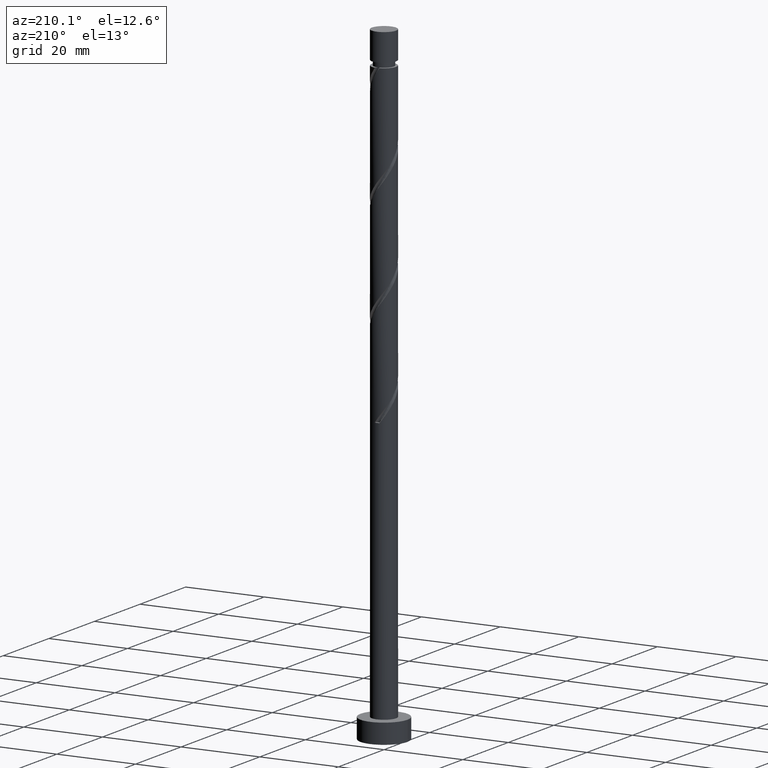
[diagram: clean part render]
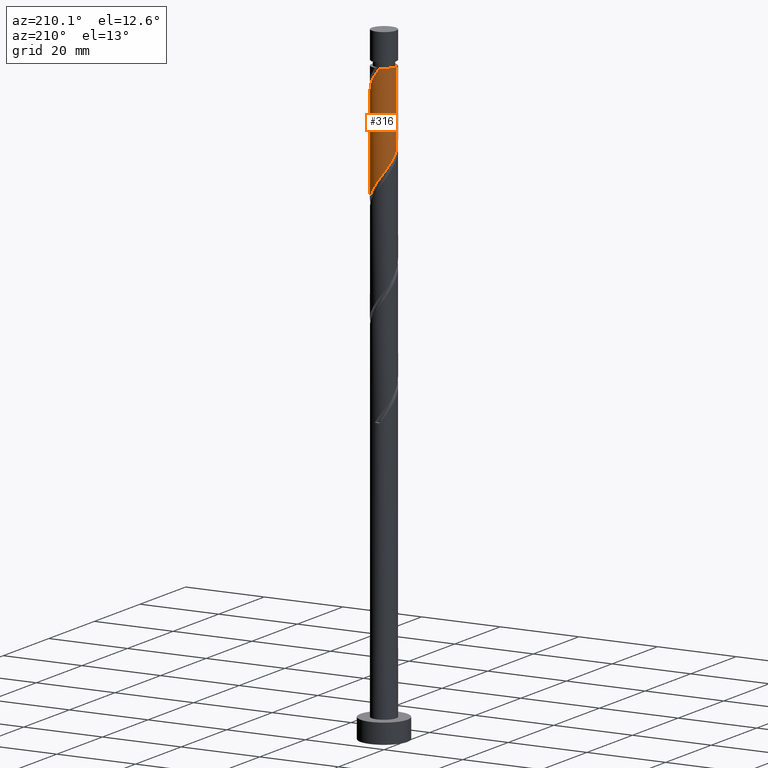
[diagram: same view with one face highlighted and labeled with its STEP entity id]
A machine part, auxiliary view. The second image highlights one B-rep face of the part: STEP entity #316.
In plain terms, the highlighted cylindrical surface (edge-blend (fillet) strip) has radius 3.1 mm, axis along (-0, -0, -1).
Its self-contained STEP definition (entity closure, byte-faithful):
#77 = CARTESIAN_POINT ( 'NONE',  ( -3.099999999999999201, 0.08920413222385366325, 132.5606687935006107 ) ) ;
#94 =( BOUNDED_CURVE ( )  B_SPLINE_CURVE ( 2, ( #959, #198, #1099, #1618, #1628, #971, #1266, #150, #652, #121, #528, #1429, #1535, #240, #1165 ),
 .UNSPECIFIED., .F., .T. ) 
 B_SPLINE_CURVE_WITH_KNOTS ( ( 3, 2, 2, 2, 2, 2, 2, 3 ),
 ( 0.6795252162417517727, 0.6818181818181818787, 0.6931818181818180102, 0.7045454545454543638, 0.7159090909090904953, 0.7272727272727268488, 0.7386363636363630913, 0.7499999999999993339 ),
 .UNSPECIFIED. ) 
 CURVE ( )  GEOMETRIC_REPRESENTATION_ITEM ( )  RATIONAL_B_SPLINE_CURVE ( ( 0.9061101570135636774, 0.9072237824201456746, 0.9090909090909228274, 0.8998376744372251768, 0.9090909090909228274, 0.8998376744372251768, 0.9090909090909228274, 0.8998376744372251768, 0.9090909090909228274, 0.8998376744372251768, 0.9090909090909228274, 0.8998376744372251768, 0.9090909090909228274, 0.8998376744372257319, 0.9090909090909222723 ) ) 
 REPRESENTATION_ITEM ( '' )  );
#106 = CARTESIAN_POINT ( 'NONE',  ( 0.000000000000000000, 0.000000000000000000, 151.8333123189179901 ) ) ;
#121 = CARTESIAN_POINT ( 'NONE',  ( 1.538914817748200381, 2.727709846153857143, 148.8030092886149589 ) ) ;
#129 = VERTEX_POINT ( 'NONE', #430 ) ;
#141 = DIRECTION ( 'NONE',  ( -0.000000000000000000, -0.000000000000000000, -1.000000000000000000 ) ) ;
#144 = ORIENTED_EDGE ( 'NONE', *, *, #348, .F. ) ;
#150 = CARTESIAN_POINT ( 'NONE',  ( 2.245062623899103382, 2.183656025078341223, 147.5908880764937408 ) ) ;
#153 = VERTEX_POINT ( 'NONE', #294 ) ;
#185 =( BOUNDED_CURVE ( )  B_SPLINE_CURVE ( 2, ( #989, #77, #335, #439, #197, #853, #1120, #952, #1617, #1508, #1368, #218, #1108, #209, #731, #832, #473, #1474, #1348, #1233, #1627, #1500, #344, #1636, #1390 ),
 .UNSPECIFIED., .F., .T. ) 
 B_SPLINE_CURVE_WITH_KNOTS ( ( 3, 2, 2, 2, 2, 2, 2, 2, 2, 2, 2, 2, 3 ),
 ( 0.4295252162417514397, 0.4318181818181818232, 0.4431818181818181768, 0.4545454545454545303, 0.4659090909090908839, 0.4772727272727272929, 0.4886363636363636465, 0.5000000000000000000, 0.5113636363636363535, 0.5227272727272727071, 0.5340909090909090606, 0.5454545454545454142, 0.5545252162417514397 ),
 .UNSPECIFIED. ) 
 CURVE ( )  GEOMETRIC_REPRESENTATION_ITEM ( )  RATIONAL_B_SPLINE_CURVE ( ( 0.9061101570135575711, 0.9072237824201397904, 0.9090909090909171653, 0.8998376744372194036, 0.9090909090909171653, 0.8998376744372194036, 0.9090909090909171653, 0.8998376744372194036, 0.9090909090909171653, 0.8998376744372194036, 0.9090909090909171653, 0.8998376744372194036, 0.9090909090909171653, 0.8998376744372194036, 0.9090909090909171653, 0.8998376744372194036, 0.9090909090909171653, 0.8998376744372194036, 0.9090909090909171653, 0.8998376744372194036, 0.9090909090909171653, 0.8998376744372194036, 0.9090909090909171653, 0.9017048011079968894, 0.9061101570135576821 ) ) 
 REPRESENTATION_ITEM ( '' )  );
#197 = CARTESIAN_POINT ( 'NONE',  ( -2.919284625192889671, 1.042965616457419253, 131.2272517128573668 ) ) ;
#198 = CARTESIAN_POINT ( 'NONE',  ( 3.100000000000002753, 0.08920413222386433527, 144.4392891776687406 ) ) ;
#209 = CARTESIAN_POINT ( 'NONE',  ( 0.1800937538493760093, 3.126695709677243862, 125.7727062583119420 ) ) ;
#210 = DIRECTION ( 'NONE',  ( -1.000000000000000000, 0.000000000000000000, 0.000000000000000000 ) ) ;
#218 = CARTESIAN_POINT ( 'NONE',  ( -0.7080932853421633144, 3.050780837809067059, 126.9848274704331601 ) ) ;
#231 = FACE_OUTER_BOUND ( 'NONE', #1418, .T. ) ;
#240 = CARTESIAN_POINT ( 'NONE',  ( -0.1800937538493489753, 3.126695709677246526, 151.2272517128573952 ) ) ;
#269 = VECTOR ( 'NONE', #141, 1000.000000000000000 ) ;
#294 = CARTESIAN_POINT ( 'NONE',  ( -3.099999999999993872, 0.000000000000000000, 151.8333123189179901 ) ) ;
#298 = ORIENTED_EDGE ( 'NONE', *, *, #726, .F. ) ;
#316 = ADVANCED_FACE ( 'NONE', ( #231 ), #454, .T. ) ;
#335 = CARTESIAN_POINT ( 'NONE',  ( -3.094870455675655663, 0.1782606591089396786, 132.4393729249785849 ) ) ;
#342 = AXIS2_PLACEMENT_3D ( 'NONE', #106, #481, #1623 ) ;
#344 = CARTESIAN_POINT ( 'NONE',  ( 3.019728287742890593, 0.7008859166835856858, 120.3181608037664745 ) ) ;
#348 = EDGE_CURVE ( 'NONE', #129, #868, #94, .T. ) ;
#378 = DIRECTION ( 'NONE',  ( -0.000000000000000000, -0.000000000000000000, -1.000000000000000000 ) ) ;
#399 = CARTESIAN_POINT ( 'NONE',  ( 3.100000000000000089, 3.796405077356794918E-16, 160.0000000000000000 ) ) ;
#411 = ORIENTED_EDGE ( 'NONE', *, *, #572, .T. ) ;
#417 = CARTESIAN_POINT ( 'NONE',  ( 3.099999999999998757, -3.769118817281108271E-15, 119.3494334648855073 ) ) ;
#430 = CARTESIAN_POINT ( 'NONE',  ( 3.100000000000003642, 2.108911719192988068E-15, 144.3171911729504586 ) ) ;
#439 = CARTESIAN_POINT ( 'NONE',  ( -3.069240442222553433, 0.6232358533614308360, 131.8333123189180185 ) ) ;
#454 = CYLINDRICAL_SURFACE ( 'NONE', #1042, 3.100000000000000089 ) ;
#473 = CARTESIAN_POINT ( 'NONE',  ( 1.447807249622133030, 2.741141033938529592, 123.9545244401301147 ) ) ;
#481 = DIRECTION ( 'NONE',  ( -0.000000000000000000, -0.000000000000000000, -1.000000000000000000 ) ) ;
#510 = CARTESIAN_POINT ( 'NONE',  ( -3.100000000000000089, 0.000000000000000000, 160.0000000000000000 ) ) ;
#528 = CARTESIAN_POINT ( 'NONE',  ( 1.123504051545182847, 2.889245341981463433, 149.4090698946755538 ) ) ;
#572 = EDGE_CURVE ( 'NONE', #129, #1032, #902, .T. ) ;
#593 = CARTESIAN_POINT ( 'NONE',  ( 0.000000000000000000, 0.000000000000000000, 160.0000000000000000 ) ) ;
#633 = CARTESIAN_POINT ( 'NONE',  ( -3.099999999999998757, -1.211502476983213288E-15, 132.6827667982188643 ) ) ;
#652 = CARTESIAN_POINT ( 'NONE',  ( 1.891988720823650993, 2.455682935616100071, 148.1969486825543925 ) ) ;
#726 = EDGE_CURVE ( 'NONE', #946, #1032, #185, .T. ) ;
#731 = CARTESIAN_POINT ( 'NONE',  ( 0.6168922110061056951, 3.037999999999999368, 125.1666456522513045 ) ) ;
#823 = CIRCLE ( 'NONE', #342, 3.099999999999993872 ) ;
#832 = CARTESIAN_POINT ( 'NONE',  ( 1.053690668162834188, 2.949304290322753985, 124.5605850461907522 ) ) ;
#853 = CARTESIAN_POINT ( 'NONE',  ( -2.769328808163226796, 1.462695379553408781, 130.6211911067968003 ) ) ;
#868 = VERTEX_POINT ( 'NONE', #980 ) ;
#902 = LINE ( 'NONE', #399, #269 ) ;
#946 = VERTEX_POINT ( 'NONE', #633 ) ;
#952 = CARTESIAN_POINT ( 'NONE',  ( -2.245062623899099830, 2.183656025078340779, 129.4090698946755822 ) ) ;
#959 = CARTESIAN_POINT ( 'NONE',  ( 3.100000000000003642, 2.108911719192987674E-15, 144.3171911729504586 ) ) ;
#971 = CARTESIAN_POINT ( 'NONE',  ( 2.769328808163231237, 1.462695379553409447, 146.3787668643725510 ) ) ;
#980 = CARTESIAN_POINT ( 'NONE',  ( -0.6168922110061703101, 3.038000000000658396, 151.8333123189179332 ) ) ;
#989 = CARTESIAN_POINT ( 'NONE',  ( -3.099999999999998757, -1.211502476983213288E-15, 132.6827667982188643 ) ) ;
#1032 = VERTEX_POINT ( 'NONE', #417 ) ;
#1042 = AXIS2_PLACEMENT_3D ( 'NONE', #593, #1258, #210 ) ;
#1099 = CARTESIAN_POINT ( 'NONE',  ( 3.094870455675660548, 0.1782606591089387071, 144.5605850461907380 ) ) ;
#1108 = CARTESIAN_POINT ( 'NONE',  ( -0.2639997657463936109, 3.088738273743154572, 126.3787668643725510 ) ) ;
#1120 = CARTESIAN_POINT ( 'NONE',  ( -2.507195716031161759, 1.823175702315874558, 130.0151305007361771 ) ) ;
#1123 = EDGE_CURVE ( 'NONE', #153, #868, #823, .T. ) ;
#1165 = CARTESIAN_POINT ( 'NONE',  ( -0.6168922110061703101, 3.038000000000658396, 151.8333123189179332 ) ) ;
#1227 = ORIENTED_EDGE ( 'NONE', *, *, #1398, .F. ) ;
#1233 = CARTESIAN_POINT ( 'NONE',  ( 2.480935279548627026, 1.911444469447287853, 122.1363426219482875 ) ) ;
#1258 = DIRECTION ( 'NONE',  ( -0.000000000000000000, -0.000000000000000000, -1.000000000000000000 ) ) ;
#1266 = CARTESIAN_POINT ( 'NONE',  ( 2.507195716031167976, 1.823175702315876334, 146.9848274704331459 ) ) ;
#1291 = ORIENTED_EDGE ( 'NONE', *, *, #1123, .T. ) ;
#1348 = CARTESIAN_POINT ( 'NONE',  ( 2.161429555315029116, 2.222211123500796859, 122.7424032280089108 ) ) ;
#1368 = CARTESIAN_POINT ( 'NONE',  ( -1.123504051545180626, 2.889245341981458992, 127.5908880764937408 ) ) ;
#1390 = CARTESIAN_POINT ( 'NONE',  ( 3.099999999999998312, -3.769118817281108271E-15, 119.3494334648854931 ) ) ;
#1398 = EDGE_CURVE ( 'NONE', #153, #946, #1436, .T. ) ;
#1418 = EDGE_LOOP ( 'NONE', ( #144, #411, #298, #1227, #1291 ) ) ;
#1429 = CARTESIAN_POINT ( 'NONE',  ( 0.7080932853421649797, 3.050780837809070611, 150.0151305007361202 ) ) ;
#1436 = LINE ( 'NONE', #510, #1472 ) ;
#1472 = VECTOR ( 'NONE', #378, 1000.000000000000000 ) ;
#1474 = CARTESIAN_POINT ( 'NONE',  ( 1.841923831081431873, 2.532977777554304755, 123.3484638340695199 ) ) ;
#1500 = CARTESIAN_POINT ( 'NONE',  ( 2.918956106357021074, 1.135057298223620448, 120.9242214098270694 ) ) ;
#1508 = CARTESIAN_POINT ( 'NONE',  ( -1.538914817748199271, 2.727709846153853590, 128.1969486825543925 ) ) ;
#1535 = CARTESIAN_POINT ( 'NONE',  ( 0.2639997657463947767, 3.088738273743159457, 150.6211911067968288 ) ) ;
#1617 = CARTESIAN_POINT ( 'NONE',  ( -1.891988720823648551, 2.455682935616096518, 128.8030092886149589 ) ) ;
#1618 = CARTESIAN_POINT ( 'NONE',  ( 3.069240442222557430, 0.6232358533614306140, 145.1666456522513613 ) ) ;
#1623 = DIRECTION ( 'NONE',  ( -1.000000000000000000, 0.000000000000000000, 0.000000000000000000 ) ) ;
#1627 = CARTESIAN_POINT ( 'NONE',  ( 2.699945692952822718, 1.523250883835454816, 121.5302820158877068 ) ) ;
#1628 = CARTESIAN_POINT ( 'NONE',  ( 2.919284625192895000, 1.042965616457419697, 145.7727062583118993 ) ) ;
#1636 = CARTESIAN_POINT ( 'NONE',  ( 3.100000000000000533, 0.3550396748938736691, 119.8353934178568210 ) ) ;